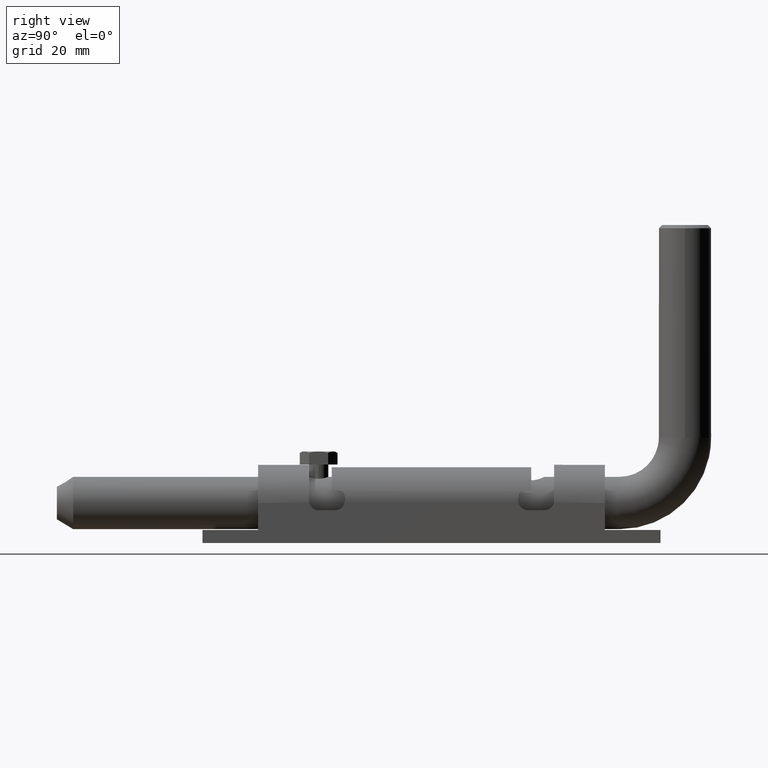
[diagram: clean part render]
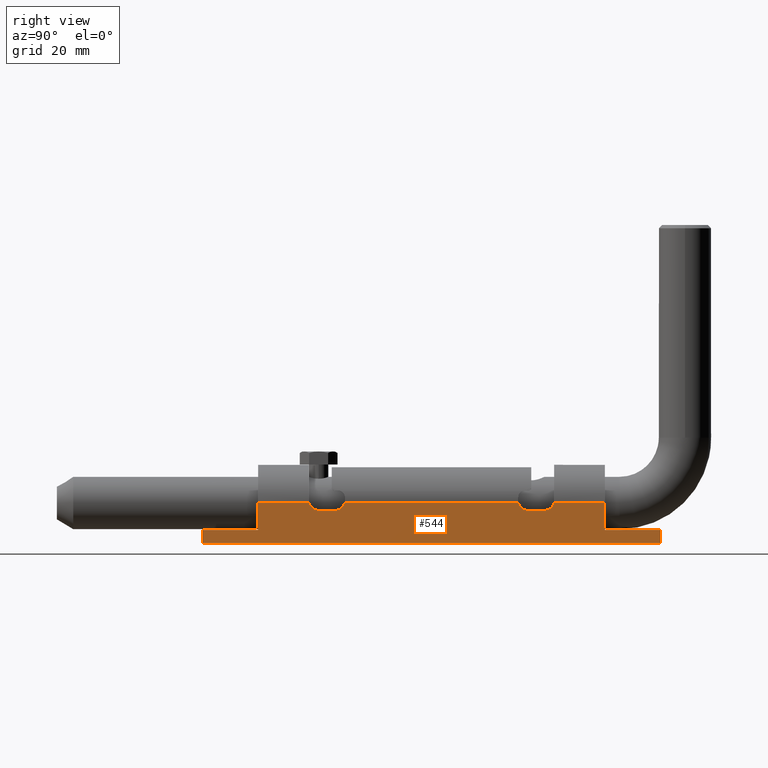
[diagram: same view with one face highlighted and labeled with its STEP entity id]
A machine part, right view. The second image highlights one B-rep face of the part: STEP entity #544.
In plain terms, the highlighted planar face has unit normal (-1, -0, 0).
Its self-contained STEP definition (entity closure, byte-faithful):
#92 = AXIS2_PLACEMENT_3D ( 'NONE', #12138, #9651, #1803 ) ;
#97 = VECTOR ( 'NONE', #16614, 1000.000000000000000 ) ;
#195 = CARTESIAN_POINT ( 'NONE',  ( 11.75000000000000888, -29.50000000000000355, 8.000000000000000000 ) ) ;
#445 = ORIENTED_EDGE ( 'NONE', *, *, #1857, .F. ) ;
#515 = DIRECTION ( 'NONE',  ( -0.000000000000000000, -0.000000000000000000, -1.000000000000000000 ) ) ;
#544 = ADVANCED_FACE ( 'NONE', ( #5392 ), #7100, .F. ) ;
#621 = DIRECTION ( 'NONE',  ( -0.000000000000000000, -1.000000000000000000, -0.000000000000000000 ) ) ;
#737 = ORIENTED_EDGE ( 'NONE', *, *, #1482, .F. ) ;
#884 = LINE ( 'NONE', #13120, #9379 ) ;
#939 = VERTEX_POINT ( 'NONE', #1775 ) ;
#1024 = EDGE_CURVE ( 'NONE', #8268, #15281, #4564, .T. ) ;
#1162 = EDGE_CURVE ( 'NONE', #7492, #11108, #16041, .T. ) ;
#1183 = CARTESIAN_POINT ( 'NONE',  ( 11.75000000000000355, -29.50000000000000355, 11.00000000000000000 ) ) ;
#1346 = DIRECTION ( 'NONE',  ( -1.239088197126290570E-16, 1.000000000000000000, -0.000000000000000000 ) ) ;
#1482 = EDGE_CURVE ( 'NONE', #7492, #4167, #8182, .T. ) ;
#1600 = CARTESIAN_POINT ( 'NONE',  ( 11.75000000000000888, -34.49999999999999289, 8.000000000000000000 ) ) ;
#1652 = CARTESIAN_POINT ( 'NONE',  ( 11.74999999999999645, 34.49999999999999289, 11.00000000000000000 ) ) ;
#1660 = VECTOR ( 'NONE', #15263, 1000.000000000000000 ) ;
#1775 = CARTESIAN_POINT ( 'NONE',  ( 11.74999999999999112, 53.00000000000000000, 2.000000000000000000 ) ) ;
#1803 = DIRECTION ( 'NONE',  ( 0.000000000000000000, -1.000000000000000000, 0.000000000000000000 ) ) ;
#1852 = ORIENTED_EDGE ( 'NONE', *, *, #5194, .T. ) ;
#1857 = EDGE_CURVE ( 'NONE', #939, #8268, #2911, .T. ) ;
#2065 = LINE ( 'NONE', #7386, #12168 ) ;
#2140 = CARTESIAN_POINT ( 'NONE',  ( 11.74999999999999112, -53.00000000000000000, 2.000000000000000000 ) ) ;
#2409 = ORIENTED_EDGE ( 'NONE', *, *, #4420, .T. ) ;
#2515 = CARTESIAN_POINT ( 'NONE',  ( 11.74999999999999289, 29.50000000000000355, 11.00000000000000000 ) ) ;
#2652 = LINE ( 'NONE', #11240, #1660 ) ;
#2790 = VERTEX_POINT ( 'NONE', #4352 ) ;
#2891 = CARTESIAN_POINT ( 'NONE',  ( 11.75000000000000888, -70.00000000000000000, 2.000000000000000000 ) ) ;
#2911 = LINE ( 'NONE', #6565, #10388 ) ;
#2926 = CARTESIAN_POINT ( 'NONE',  ( 11.75000000000000888, -70.00000000000000000, 2.000000000000000000 ) ) ;
#2941 = DIRECTION ( 'NONE',  ( 0.000000000000000000, -1.000000000000000000, 0.000000000000000000 ) ) ;
#3133 = DIRECTION ( 'NONE',  ( 1.239088197126290817E-16, -1.000000000000000000, 0.000000000000000000 ) ) ;
#3245 = LINE ( 'NONE', #11718, #16553 ) ;
#3481 = CARTESIAN_POINT ( 'NONE',  ( 11.74999999999999112, 70.00000000000000000, -2.000000000000000000 ) ) ;
#3552 = ORIENTED_EDGE ( 'NONE', *, *, #11820, .T. ) ;
#3707 = ORIENTED_EDGE ( 'NONE', *, *, #10903, .T. ) ;
#3893 = DIRECTION ( 'NONE',  ( -1.000000000000000000, -1.239088197126290817E-16, 0.000000000000000000 ) ) ;
#3918 = ORIENTED_EDGE ( 'NONE', *, *, #11046, .T. ) ;
#4159 = CIRCLE ( 'NONE', #11704, 2.999999999999999112 ) ;
#4166 = ORIENTED_EDGE ( 'NONE', *, *, #13078, .F. ) ;
#4167 = VERTEX_POINT ( 'NONE', #2140 ) ;
#4265 = EDGE_CURVE ( 'NONE', #7644, #4167, #2652, .T. ) ;
#4352 = CARTESIAN_POINT ( 'NONE',  ( 11.74999999999998934, 26.59526249034443524, 10.25000000000000888 ) ) ;
#4414 = CARTESIAN_POINT ( 'NONE',  ( 11.74999999999998934, 53.00000000000000000, 10.25000000000000888 ) ) ;
#4420 = EDGE_CURVE ( 'NONE', #16703, #2790, #12941, .T. ) ;
#4564 = LINE ( 'NONE', #7709, #11230 ) ;
#4821 = VERTEX_POINT ( 'NONE', #14590 ) ;
#5138 = AXIS2_PLACEMENT_3D ( 'NONE', #1652, #10690, #2941 ) ;
#5185 = DIRECTION ( 'NONE',  ( -0.000000000000000000, -0.000000000000000000, -1.000000000000000000 ) ) ;
#5194 = EDGE_CURVE ( 'NONE', #14276, #16703, #3245, .T. ) ;
#5392 = FACE_OUTER_BOUND ( 'NONE', #16069, .T. ) ;
#5412 = VECTOR ( 'NONE', #9590, 1000.000000000000000 ) ;
#5735 = CARTESIAN_POINT ( 'NONE',  ( 11.75000000000000888, -70.00000000000000000, -2.000000000000000000 ) ) ;
#6036 = ORIENTED_EDGE ( 'NONE', *, *, #11068, .T. ) ;
#6503 = AXIS2_PLACEMENT_3D ( 'NONE', #2515, #11742, #7719 ) ;
#6565 = CARTESIAN_POINT ( 'NONE',  ( 11.74999999999999112, 70.00000000000000000, 2.000000000000000000 ) ) ;
#6741 = EDGE_CURVE ( 'NONE', #4821, #8055, #9798, .T. ) ;
#7100 = PLANE ( 'NONE',  #15963 ) ;
#7386 = CARTESIAN_POINT ( 'NONE',  ( 11.74999999999998934, 53.00000000000000000, 10.25000000000000888 ) ) ;
#7444 = VERTEX_POINT ( 'NONE', #1600 ) ;
#7452 = CARTESIAN_POINT ( 'NONE',  ( 11.74999999999999112, 70.00000000000000000, 2.000000000000000000 ) ) ;
#7490 = DIRECTION ( 'NONE',  ( 1.416100796715759877E-16, 0.000000000000000000, -1.000000000000000000 ) ) ;
#7492 = VERTEX_POINT ( 'NONE', #2891 ) ;
#7644 = VERTEX_POINT ( 'NONE', #13457 ) ;
#7709 = CARTESIAN_POINT ( 'NONE',  ( 11.74999999999999112, 70.00000000000000000, 2.000000000000000000 ) ) ;
#7719 = DIRECTION ( 'NONE',  ( 0.000000000000000000, -1.000000000000000000, 0.000000000000000000 ) ) ;
#7750 = DIRECTION ( 'NONE',  ( 0.000000000000000000, -1.000000000000000000, 0.000000000000000000 ) ) ;
#8055 = VERTEX_POINT ( 'NONE', #16228 ) ;
#8182 = LINE ( 'NONE', #11821, #12611 ) ;
#8217 = CIRCLE ( 'NONE', #92, 3.000000000000002665 ) ;
#8268 = VERTEX_POINT ( 'NONE', #7452 ) ;
#8421 = ORIENTED_EDGE ( 'NONE', *, *, #15406, .F. ) ;
#8582 = LINE ( 'NONE', #11358, #97 ) ;
#8822 = LINE ( 'NONE', #10446, #14469 ) ;
#9063 = DIRECTION ( 'NONE',  ( -1.239088197126290570E-16, 1.000000000000000000, -0.000000000000000000 ) ) ;
#9343 = ORIENTED_EDGE ( 'NONE', *, *, #6741, .T. ) ;
#9379 = VECTOR ( 'NONE', #9063, 1000.000000000000000 ) ;
#9574 = DIRECTION ( 'NONE',  ( -1.000000000000000000, -1.239088197126290817E-16, 0.000000000000000000 ) ) ;
#9590 = DIRECTION ( 'NONE',  ( -0.000000000000000000, -1.000000000000000000, -0.000000000000000000 ) ) ;
#9638 = CARTESIAN_POINT ( 'NONE',  ( 11.75000000000000888, 29.50000000000000355, 8.000000000000000000 ) ) ;
#9651 = DIRECTION ( 'NONE',  ( -1.000000000000000000, -1.239088197126290817E-16, 0.000000000000000000 ) ) ;
#9798 = LINE ( 'NONE', #4414, #13018 ) ;
#10388 = VECTOR ( 'NONE', #1346, 1000.000000000000000 ) ;
#10399 = VERTEX_POINT ( 'NONE', #195 ) ;
#10446 = CARTESIAN_POINT ( 'NONE',  ( 11.74999999999998934, 53.00000000000000000, 10.25000000000000888 ) ) ;
#10690 = DIRECTION ( 'NONE',  ( -1.000000000000000000, -1.239088197126290817E-16, 0.000000000000000000 ) ) ;
#10903 = EDGE_CURVE ( 'NONE', #2790, #12486, #8822, .T. ) ;
#11002 = CARTESIAN_POINT ( 'NONE',  ( 11.74999999999998934, -37.40473750965555411, 10.25000000000000888 ) ) ;
#11046 = EDGE_CURVE ( 'NONE', #7444, #13449, #8217, .T. ) ;
#11054 = LINE ( 'NONE', #16005, #5412 ) ;
#11068 = EDGE_CURVE ( 'NONE', #13449, #7644, #11054, .T. ) ;
#11108 = VERTEX_POINT ( 'NONE', #5735 ) ;
#11230 = VECTOR ( 'NONE', #5185, 1000.000000000000000 ) ;
#11240 = CARTESIAN_POINT ( 'NONE',  ( 11.74999999999998934, -53.00000000000000000, 10.25000000000000888 ) ) ;
#11358 = CARTESIAN_POINT ( 'NONE',  ( 11.75000000000000888, -37.50000000000000000, 8.000000000000000000 ) ) ;
#11704 = AXIS2_PLACEMENT_3D ( 'NONE', #1183, #3893, #15441 ) ;
#11718 = CARTESIAN_POINT ( 'NONE',  ( 11.75000000000000888, 37.50000000000000000, 8.000000000000000000 ) ) ;
#11742 = DIRECTION ( 'NONE',  ( -1.000000000000000000, -1.239088197126290817E-16, 0.000000000000000000 ) ) ;
#11760 = DIRECTION ( 'NONE',  ( -0.000000000000000000, -1.000000000000000000, -0.000000000000000000 ) ) ;
#11820 = EDGE_CURVE ( 'NONE', #12486, #10399, #4159, .T. ) ;
#11821 = CARTESIAN_POINT ( 'NONE',  ( 11.74999999999999112, 70.00000000000000000, 2.000000000000000000 ) ) ;
#11931 = DIRECTION ( 'NONE',  ( -1.239088197126290570E-16, 1.000000000000000000, -0.000000000000000000 ) ) ;
#12138 = CARTESIAN_POINT ( 'NONE',  ( 11.75000000000000355, -34.49999999999999289, 11.00000000000000000 ) ) ;
#12168 = VECTOR ( 'NONE', #7490, 1000.000000000000000 ) ;
#12237 = CARTESIAN_POINT ( 'NONE',  ( 11.74999999999999112, 70.00000000000000000, 2.000000000000000000 ) ) ;
#12261 = ORIENTED_EDGE ( 'NONE', *, *, #4265, .T. ) ;
#12414 = ORIENTED_EDGE ( 'NONE', *, *, #1162, .T. ) ;
#12486 = VERTEX_POINT ( 'NONE', #14140 ) ;
#12565 = CIRCLE ( 'NONE', #5138, 3.000000000000002665 ) ;
#12611 = VECTOR ( 'NONE', #11931, 1000.000000000000000 ) ;
#12911 = CARTESIAN_POINT ( 'NONE',  ( 11.75000000000000888, 34.49999999999999289, 8.000000000000000000 ) ) ;
#12941 = CIRCLE ( 'NONE', #6503, 2.999999999999999112 ) ;
#13018 = VECTOR ( 'NONE', #621, 1000.000000000000000 ) ;
#13078 = EDGE_CURVE ( 'NONE', #7444, #10399, #8582, .T. ) ;
#13120 = CARTESIAN_POINT ( 'NONE',  ( 11.74999999999999112, 70.00000000000000000, -2.000000000000000000 ) ) ;
#13449 = VERTEX_POINT ( 'NONE', #11002 ) ;
#13452 = ORIENTED_EDGE ( 'NONE', *, *, #15983, .T. ) ;
#13457 = CARTESIAN_POINT ( 'NONE',  ( 11.74999999999998934, -53.00000000000000000, 10.25000000000000888 ) ) ;
#13588 = EDGE_CURVE ( 'NONE', #11108, #15281, #884, .T. ) ;
#13845 = VECTOR ( 'NONE', #515, 1000.000000000000000 ) ;
#13919 = ORIENTED_EDGE ( 'NONE', *, *, #13588, .T. ) ;
#14140 = CARTESIAN_POINT ( 'NONE',  ( 11.74999999999998934, -26.59526249034443168, 10.25000000000000888 ) ) ;
#14276 = VERTEX_POINT ( 'NONE', #12911 ) ;
#14469 = VECTOR ( 'NONE', #11760, 1000.000000000000000 ) ;
#14590 = CARTESIAN_POINT ( 'NONE',  ( 11.74999999999998934, 53.00000000000000000, 10.25000000000000888 ) ) ;
#15263 = DIRECTION ( 'NONE',  ( 1.416100796715759877E-16, 0.000000000000000000, -1.000000000000000000 ) ) ;
#15281 = VERTEX_POINT ( 'NONE', #3481 ) ;
#15406 = EDGE_CURVE ( 'NONE', #4821, #939, #2065, .T. ) ;
#15441 = DIRECTION ( 'NONE',  ( 0.000000000000000000, -1.000000000000000000, 0.000000000000000000 ) ) ;
#15704 = ORIENTED_EDGE ( 'NONE', *, *, #1024, .F. ) ;
#15963 = AXIS2_PLACEMENT_3D ( 'NONE', #12237, #9574, #3133 ) ;
#15983 = EDGE_CURVE ( 'NONE', #8055, #14276, #12565, .T. ) ;
#16005 = CARTESIAN_POINT ( 'NONE',  ( 11.74999999999998934, 53.00000000000000000, 10.25000000000000888 ) ) ;
#16041 = LINE ( 'NONE', #2926, #13845 ) ;
#16069 = EDGE_LOOP ( 'NONE', ( #9343, #13452, #1852, #2409, #3707, #3552, #4166, #3918, #6036, #12261, #737, #12414, #13919, #15704, #445, #8421 ) ) ;
#16228 = CARTESIAN_POINT ( 'NONE',  ( 11.74999999999998934, 37.40473750965556121, 10.25000000000000888 ) ) ;
#16553 = VECTOR ( 'NONE', #7750, 1000.000000000000000 ) ;
#16614 = DIRECTION ( 'NONE',  ( 0.000000000000000000, 1.000000000000000000, 0.000000000000000000 ) ) ;
#16703 = VERTEX_POINT ( 'NONE', #9638 ) ;